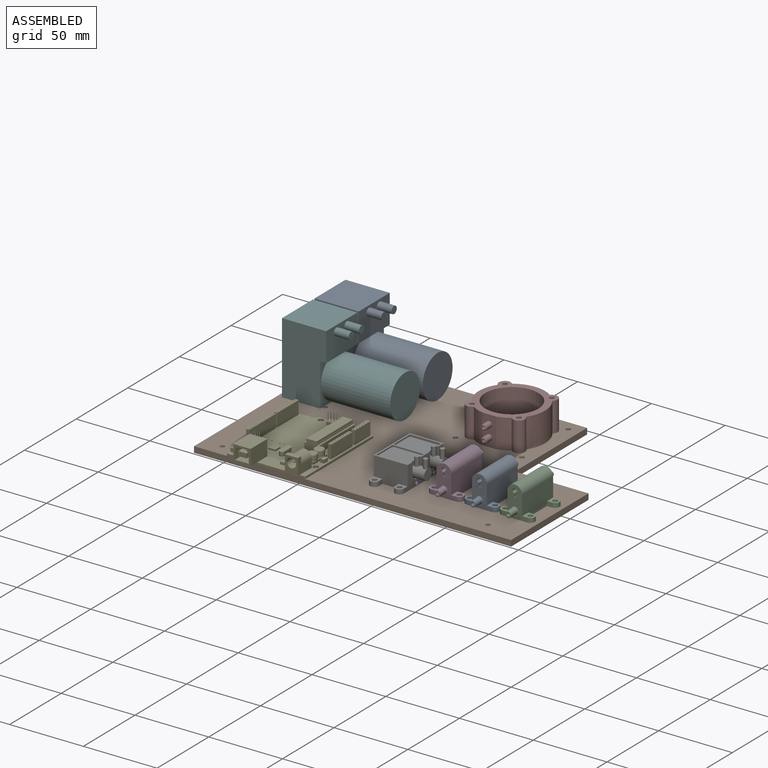
[diagram: assembled view]
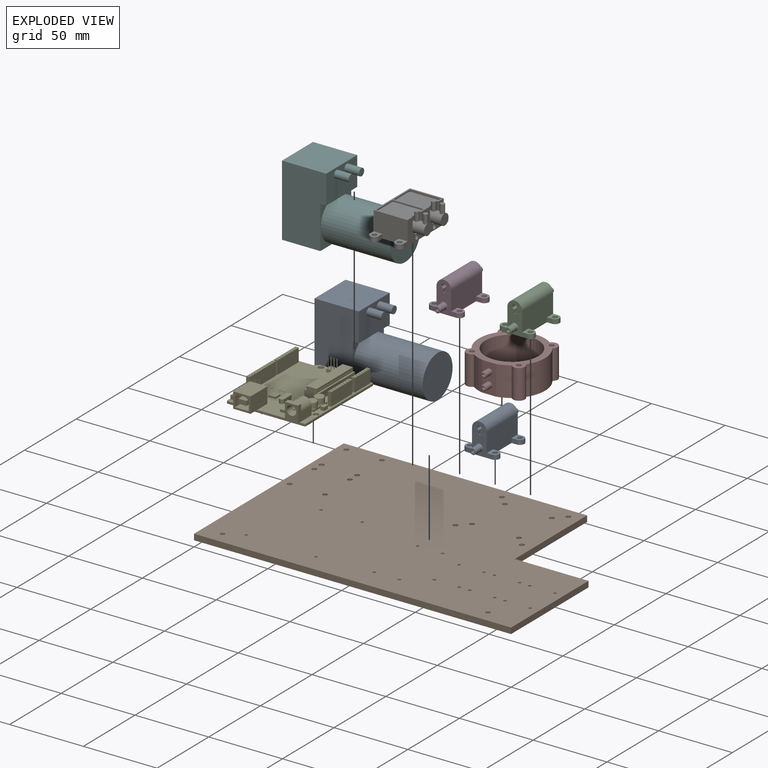
[diagram: exploded view]
GUIDED TOUR — MATED ASSEMBLY WITH SUBASSEMBLIES (Onshape document 6fe36d6163adcaab7d291b34, AutoMate assembly 6fe36d6163adcaab7d291b34_4f25ac5a46c20a3193c2e5eb_db5151b2138fbb8e81cf2395_default)

This assembly has 11 component occurrences arranged in 9 top-level units: 8 individual components plus 1 subassembly (S0). The tour has two levels: first the top level, where each subassembly is treated as one rigid unit; then each subassembly is toured internally in its own section (nesting deeper than one subassembly level is flattened into its subassembly's section).

Components are labeled P0..P10 across the whole record; subassembly units are labeled S0..S0. A mate is a constraint between two units; its type names the relative motion it leaves free:
  PARALLEL — keeps the two listed directions parallel,
  PLANAR — leaves sliding in the plane through the listed point (normal = the listed direction) and rotation about that normal free.
Axis/direction vectors are unit vectors and 'through' points are millimeter coordinates, both in the assembly's world frame.

TOP-LEVEL MATES (between units; each subassembly's internal mates are listed in its own section)
  1. PARALLEL "Parallel 1": P4 <-> P1, direction (0.000, -1.000, 0.000) through (52.75, -0.01, 5.52) mm
  2. PLANAR "Planar 5": P2 <-> P1, direction (0.000, 0.000, -1.000) through (200.60, 39.06, 4.00) mm
  3. PLANAR "Planar 7": P5 <-> P1, direction (0.000, 0.000, -1.000) through (16.11, 95.74, 4.00) mm
  4. PLANAR "Planar 8": S0 <-> P1, direction (0.000, 0.000, -1.000) through (119.59, 37.08, 4.00) mm
  5. PLANAR "Planar 4": P1 <-> P0, direction (0.000, 0.000, 1.000) through (97.06, 67.64, 4.00) mm
  6. PLANAR "Planar 6": P9 <-> P1, direction (0.000, 0.000, -1.000) through (16.05, 127.32, 4.00) mm
  7. PLANAR "Planar 3": P3 <-> P1, direction (0.000, 0.000, -1.000) through (152.57, 39.01, 4.00) mm
  8. PLANAR "Planar 2": P7 <-> P1, direction (0.000, 0.000, -1.000) through (134.97, 115.06, 4.00) mm
  9. PLANAR "Planar 1": P1 <-> P4, direction (0.000, 0.000, 1.000) through (97.06, 67.64, 4.00) mm

TOP-LEVEL ASSEMBLY ORDER
  1. P9 — the base component [order verified]
  2. P5 [order verified]
  3. P7 [order verified]
  4. S0 [order verified]
  5. P3 [order verified]
  6. P4 [order verified]
  7. P0 [order verified]
  8. P2 [order verified]
  9. P1 [order verified]
Order-tag legend:
  [order verified] — this step's position reverses a verified removal order: the component was checked to insert without passing through the ones already placed.

Of the 11 component occurrences, 5 carry the full construction recipe — the FeatureScript program that regenerates the part's solid from scratch; the rest are supplied as boundary geometry only. Each toured unit is shown spotlighted twice — assembled, then exploded with a leader line back to its socket (green = recipe-attached component, orange = geometry-only, blue = subassembly unit; the rest desaturated gray).
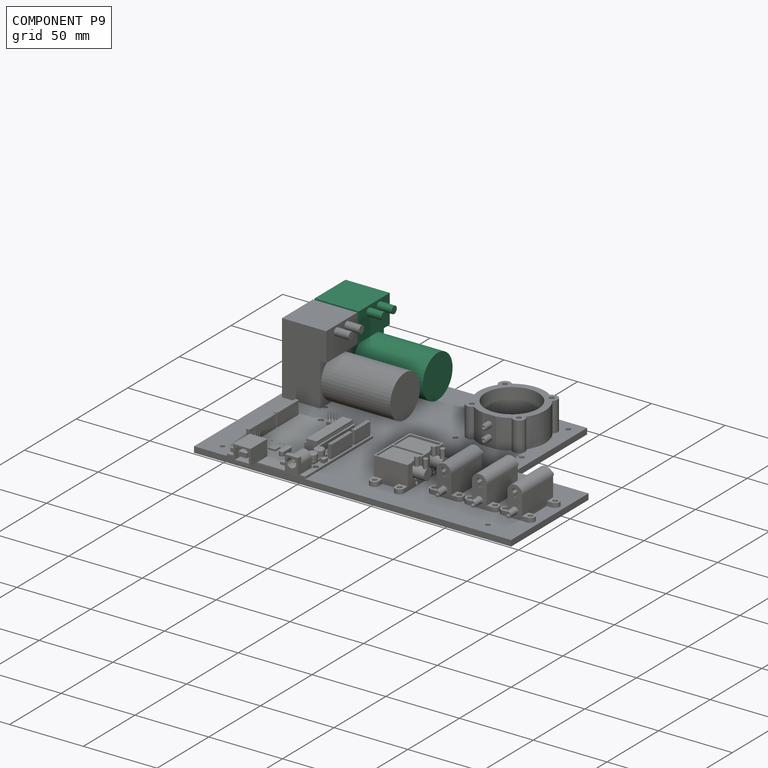
[diagram: component P9 — assembled]
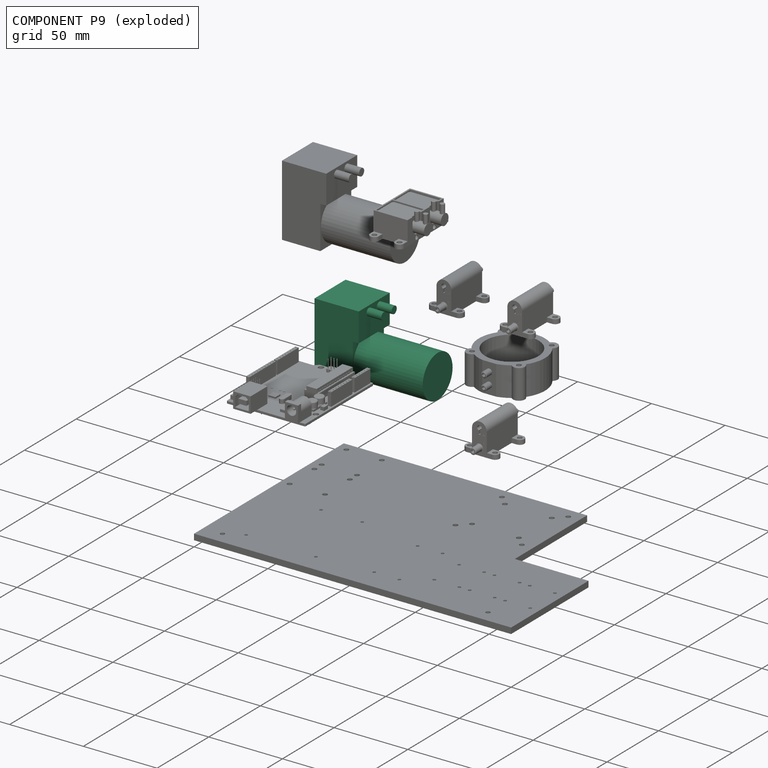
[diagram: component P9 — exploded]
COMPONENT P9 — same part as P5 (CADFS 00896236); its construction recipe is shown at P5.
Held by: PLANAR mate "Planar 6" to P1.
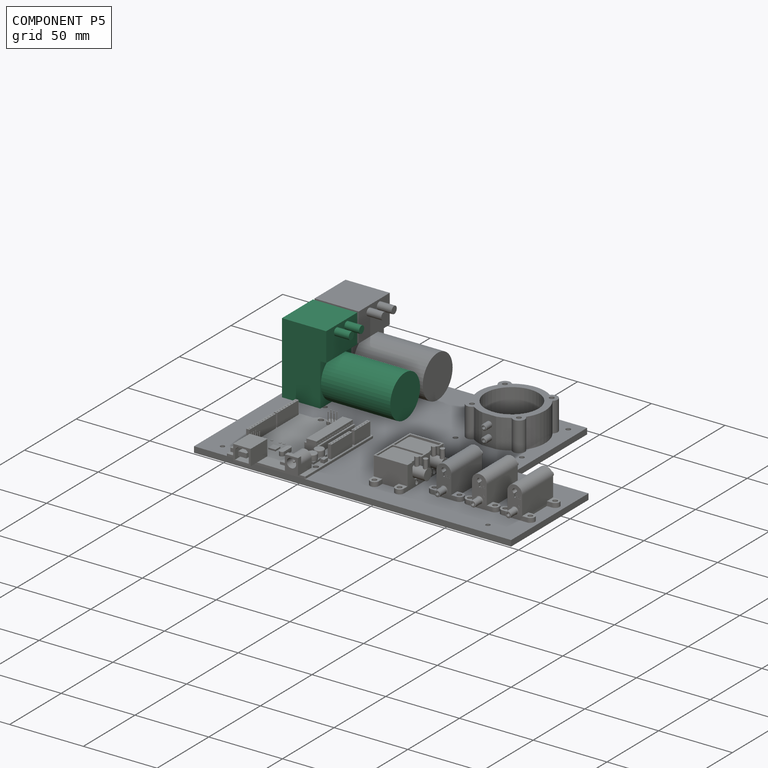
[diagram: component P5 — assembled]
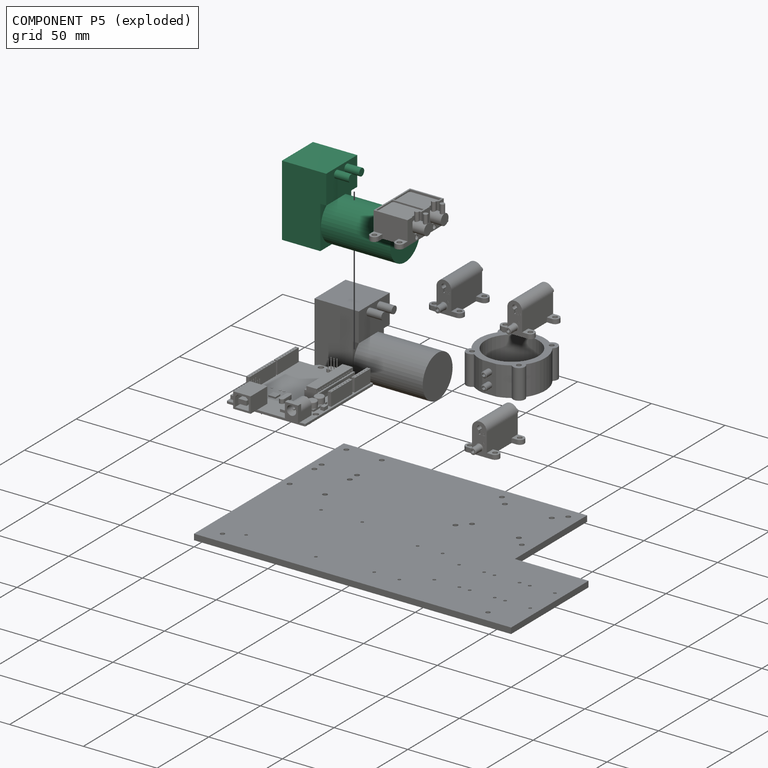
[diagram: component P5 — exploded]
COMPONENT P5 — recipe-attached (CADFS 00896236, mesh-verified: the recipe's output STEP matches this component's geometry to below the mesh-comparison resolution (tessellation chordal tolerance ~0.139 mm)).
Held by: PLANAR mate "Planar 7" to P1.
Construction recipe (FeatureScript — the CAD program that rebuilds this solid; sketch coordinates are in the units given by the * unit suffixes, e.g. mm):

FeatureScript 1511;
import(path : "onshape/std/geometry.fs", version : "1511.0");
import(path : "onshape/std/common.fs", version : "1511.0");
const mm = millimeter;
const VERTEX = EntityType.VERTEX;
const EDGE = EntityType.EDGE;
const FACE = EntityType.FACE;
const BODY = EntityType.BODY;
function v(x, y){return vector(x, y);}
function OD(order){return orderDisambiguation(order);}
function OSD(set){return originalSetDisambiguation(set);}
function TD(topology){return topologyDisambiguation(topology);}
function TDD(query){return trueDependencyDisambiguation(query);}
function sQuery(a, b, c) {return sketchEntityQuery(a, b, c);}

annotation { "Feature Type Name" : "Feature", "Feature Type Description" : "" }
export const myFeature = defineFeature(function(context is Context, id is Id, definition is map)
    precondition{}
    {
        {
            var Q0;
            Q0=qCreatedBy(makeId("Top.planeOp"),FACE);
            var sketch = newSketch(context, id + "F0", { "sketchPlane" : qUnion([Q0])});
            skLineSegment(sketch, "E0.bottom", {"start": v(-15, 15) * mm, "end": v(15, 15) * mm});
            skLineSegment(sketch, "E0.top", {"start": v(-15, -15) * mm, "end": v(15, -15) * mm});
            skLineSegment(sketch, "E0.left", {"start": v(-15, 15) * mm, "end": v(-15, -15) * mm});
            skLineSegment(sketch, "E0.right", {"start": v(15, 15) * mm, "end": v(15, -15) * mm});
            skSolve(sketch);
        }
        {
            var Q0;
            Q0 = qSketchRegion(id + "F0", true);
            extrude(context, id + "F1", {"entities" : qUnion([Q0]), "depth" : 48.5 * mm, "offsetDistance" : 25 * mm});
        }
        {
            var Q0;
            Q0=makeQuery(id+"F1.opExtrude","CAP_FACE",FACE,{"disambiguationData":[OSD([sQuery(id+"F0.wireOp",EDGE,"E0.bottom"),sQuery(id+"F0.wireOp",EDGE,"E0.top"),sQuery(id+"F0.wireOp",EDGE,"E0.left"),sQuery(id+"F0.wireOp",EDGE,"E0.right")])],"isStart":true});
            var sketch = newSketch(context, id + "F2", { "sketchPlane" : qUnion([Q0])});
            skLineSegment(sketch, "E1.bottom", {"start": v(-15, 15) * mm, "end": v(-11, 15) * mm});
            skLineSegment(sketch, "E1.top", {"start": v(-15, -15) * mm, "end": v(-11, -15) * mm});
            skLineSegment(sketch, "E1.left", {"start": v(-15, 15) * mm, "end": v(-15, -15) * mm});
            skLineSegment(sketch, "E1.right", {"start": v(-11, 15) * mm, "end": v(-11, -15) * mm});
            skSolve(sketch);
        }
        {
            var Q0;
            Q0 = qSketchRegion(id + "F2", true);
            extrude(context, id + "F3", {"entities" : qUnion([Q0]), "operationType" : NewBodyOperationType.REMOVE, "oppositeDirection" : true, "depth" : 29 * mm, "offsetDistance" : 25 * mm});
        }
        {
            var Q0;
            Q0=makeQuery(id+"F3.boolean.opBoolean","COPY",FACE,{"derivedFrom":makeQuery(id+"F3.opExtrude","SWEPT_FACE",FACE,{"disambiguationData":[OSD([sQuery(id+"F2.wireOp",EDGE,"E1.right")])]})});
            var sketch = newSketch(context, id + "F4", { "sketchPlane" : qUnion([Q0])});
            skCircle(sketch, "E2", {"center": v(0, 14.5) * mm, "radius": 14.45 * mm});
            skSolve(sketch);
        }
        {
            var Q0;
            Q0 = qSketchRegion(id + "F4", true);
            extrude(context, id + "F5", {"entities" : qUnion([Q0]), "operationType" : NewBodyOperationType.ADD, "depth" : 47 * mm, "offsetDistance" : 25 * mm});
        }
        {
            var Q0;
            Q0=makeQuery(id+"F1.opExtrude","SWEPT_FACE",FACE,{"disambiguationData":[OSD([sQuery(id+"F0.wireOp",EDGE,"E0.left")])]});
            var sketch = newSketch(context, id + "F6", { "sketchPlane" : qUnion([Q0])});
            skLineSegment(sketch, "E3", {"start": v(-16.76, 44.5) * mm, "end": v(23.27, 44.5) * mm, "construction": true});
            skCircle(sketch, "E4", {"center": v(5, 44.5) * mm, "radius": 2.5 * mm});
            skCircle(sketch, "E5", {"center": v(-5, 44.5) * mm, "radius": 2.5 * mm});
            skSolve(sketch);
        }
        {
            var Q0;
            Q0 = qSketchRegion(id + "F6", true);
            extrude(context, id + "F7", {"entities" : qUnion([Q0]), "operationType" : NewBodyOperationType.ADD, "depth" : 10 * mm, "offsetDistance" : 25 * mm});
        }
    });
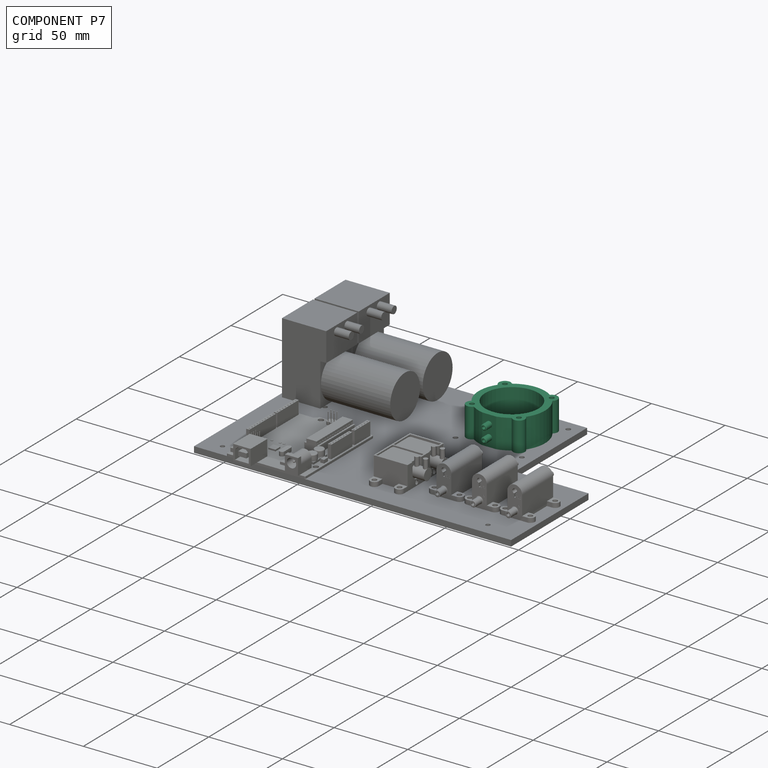
[diagram: component P7 — assembled]
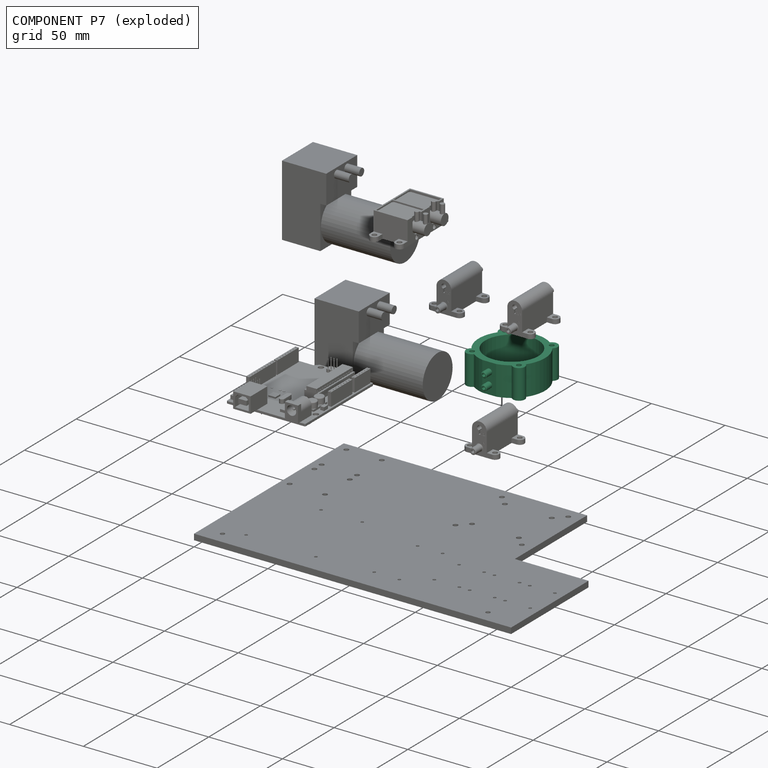
[diagram: component P7 — exploded]
COMPONENT P7 — recipe-attached (CADFS 00867752, mesh-verified: the recipe's output STEP matches this component's geometry to below the mesh-comparison resolution (tessellation chordal tolerance ~0.105 mm)).
Held by: PLANAR mate "Planar 2" to P1.
Construction recipe (FeatureScript — the CAD program that rebuilds this solid; sketch coordinates are in the units given by the * unit suffixes, e.g. mm):

FeatureScript 1511;
import(path : "onshape/std/geometry.fs", version : "1511.0");
import(path : "onshape/std/common.fs", version : "1511.0");
const mm = millimeter;
const VERTEX = EntityType.VERTEX;
const EDGE = EntityType.EDGE;
const FACE = EntityType.FACE;
const BODY = EntityType.BODY;
function v(x, y){return vector(x, y);}
function OD(order){return orderDisambiguation(order);}
function OSD(set){return originalSetDisambiguation(set);}
function TD(topology){return topologyDisambiguation(topology);}
function TDD(query){return trueDependencyDisambiguation(query);}
function sQuery(a, b, c) {return sketchEntityQuery(a, b, c);}

annotation { "Feature Type Name" : "Feature", "Feature Type Description" : "" }
export const myFeature = defineFeature(function(context is Context, id is Id, definition is map)
    precondition{}
    {
        {
            var Q0;
            Q0=qCreatedBy(makeId("Top.planeOp"),FACE);
            var sketch = newSketch(context, id + "F0", { "sketchPlane" : qUnion([Q0])});
            skArc(sketch, "E0", {"start": v(12.84, 18.48) * mm, "mid": v(0, 22.5) * mm, "end": v(-12.84, 18.48) * mm});
            skLineSegment(sketch, "E1", {"start": v(0, 0) * mm, "end": v(-27.58, 27.58) * mm, "construction": true});
            skLineSegment(sketch, "E2", {"start": v(0, 0) * mm, "end": v(35.21, 35.21) * mm, "construction": true});
            skLineSegment(sketch, "E3", {"start": v(0, 0) * mm, "end": v(26.29, -26.29) * mm, "construction": true});
            skLineSegment(sketch, "E4", {"start": v(0, 0) * mm, "end": v(-25.6, -25.6) * mm, "construction": true});
            skArc(sketch, "E5", {"start": v(-12.84, 18.48) * mm, "mid": v(-18.74, 18.74) * mm, "end": v(-18.48, 12.84) * mm});
            skArc(sketch, "E6", {"start": v(18.48, 12.84) * mm, "mid": v(18.74, 18.74) * mm, "end": v(12.84, 18.48) * mm});
            skArc(sketch, "E7", {"start": v(12.84, -18.48) * mm, "mid": v(18.74, -18.74) * mm, "end": v(18.48, -12.84) * mm});
            skArc(sketch, "E8", {"start": v(-18.48, -12.84) * mm, "mid": v(-18.74, -18.74) * mm, "end": v(-12.84, -18.48) * mm});
            skArc(sketch, "E9.trimOffspring", {"start": v(-18.48, 12.84) * mm, "mid": v(-22.5, 0) * mm, "end": v(-18.48, -12.84) * mm});
            skArc(sketch, "E10.trimOffspring", {"start": v(-12.84, -18.48) * mm, "mid": v(-8.95, -20.64) * mm, "end": v(-4.72, -22) * mm});
            skArc(sketch, "E11.trimOffspring", {"start": v(18.48, -12.84) * mm, "mid": v(22.5, 0) * mm, "end": v(18.48, 12.84) * mm});
            skCircle(sketch, "E12", {"center": v(0, 0) * mm, "radius": 18.63 * mm, "construction": true});
            skLineSegment(sketch, "E13", {"start": v(-4.72, -22) * mm, "end": v(4.72, -22) * mm});
            skArc(sketch, "E14.trimOffspring", {"start": v(4.72, -22) * mm, "mid": v(8.95, -20.64) * mm, "end": v(12.84, -18.48) * mm});
            skSolve(sketch);
        }
        {
            var Q0;
            Q0 = qSketchRegion(id + "F0", true);
            extrude(context, id + "F1", {"entities" : qUnion([Q0]), "depth" : 20 * mm, "offsetDistance" : 25 * mm});
        }
        {
            var Q0;
            Q0=makeQuery(id+"F1.opExtrude","CAP_FACE",FACE,{"disambiguationData":[OSD([sQuery(id+"F0.wireOp",EDGE,"E0"),sQuery(id+"F0.wireOp",EDGE,"E5"),sQuery(id+"F0.wireOp",EDGE,"E6"),sQuery(id+"F0.wireOp",EDGE,"E7"),sQuery(id+"F0.wireOp",EDGE,"E8"),sQuery(id+"F0.wireOp",EDGE,"E9.trimOffspring"),sQuery(id+"F0.wireOp",EDGE,"E10.trimOffspring"),sQuery(id+"F0.wireOp",EDGE,"E11.trimOffspring"),sQuery(id+"F0.wireOp",EDGE,"E13"),sQuery(id+"F0.wireOp",EDGE,"E14.trimOffspring")])],"isStart":false});
            var sketch = newSketch(context, id + "F2", { "sketchPlane" : qUnion([Q0])});
            skCircle(sketch, "E15", {"center": v(-15.9, 15.9) * mm, "radius": 1.6 * mm});
            skCircle(sketch, "E16", {"center": v(15.9, 15.9) * mm, "radius": 1.6 * mm});
            skCircle(sketch, "E17", {"center": v(15.9, -15.9) * mm, "radius": 1.6 * mm});
            skCircle(sketch, "E18", {"center": v(-15.9, -15.9) * mm, "radius": 1.6 * mm});
            skSolve(sketch);
        }
        {
            var Q0;
            Q0 = qSketchRegion(id + "F2", true);
            extrude(context, id + "F3", {"entities" : qUnion([Q0]), "operationType" : NewBodyOperationType.REMOVE, "endBound" : BoundingType.THROUGH_ALL, "oppositeDirection" : true, "depth" : 25 * mm, "offsetDistance" : 25 * mm});
        }
        {
            var Q0;
            Q0=makeQuery(id+"F1.opExtrude","CAP_FACE",FACE,{"disambiguationData":[OSD([sQuery(id+"F0.wireOp",EDGE,"E0"),sQuery(id+"F0.wireOp",EDGE,"E5"),sQuery(id+"F0.wireOp",EDGE,"E6"),sQuery(id+"F0.wireOp",EDGE,"E7"),sQuery(id+"F0.wireOp",EDGE,"E8"),sQuery(id+"F0.wireOp",EDGE,"E9.trimOffspring"),sQuery(id+"F0.wireOp",EDGE,"E10.trimOffspring"),sQuery(id+"F0.wireOp",EDGE,"E11.trimOffspring"),sQuery(id+"F0.wireOp",EDGE,"E13"),sQuery(id+"F0.wireOp",EDGE,"E14.trimOffspring")])],"isStart":false});
            var sketch = newSketch(context, id + "F4", { "sketchPlane" : qUnion([Q0])});
            skCircle(sketch, "E19", {"center": v(0, 0) * mm, "radius": 18 * mm});
            skSolve(sketch);
        }
        {
            var Q0;
            Q0 = qSketchRegion(id + "F4", true);
            extrude(context, id + "F5", {"entities" : qUnion([Q0]), "operationType" : NewBodyOperationType.REMOVE, "oppositeDirection" : true, "depth" : 18 * mm, "offsetDistance" : 25 * mm});
        }
        {
            var Q0;
            Q0=makeQuery(id+"F1.opExtrude","SWEPT_FACE",FACE,{"disambiguationData":[OSD([sQuery(id+"F0.wireOp",EDGE,"E13")])]});
            var sketch = newSketch(context, id + "F6", { "sketchPlane" : qUnion([Q0])});
            skCircle(sketch, "E20", {"center": v(0, 14) * mm, "radius": 2 * mm});
            skCircle(sketch, "E21", {"center": v(0, 6) * mm, "radius": 2 * mm});
            skSolve(sketch);
        }
        {
            var Q0;
            Q0 = qSketchRegion(id + "F6", true);
            extrude(context, id + "F7", {"entities" : qUnion([Q0]), "operationType" : NewBodyOperationType.ADD, "depth" : 5.5 * mm, "offsetDistance" : 25 * mm});
        }
        {
            var Q0;
            Q0=makeQuery(id+"F7.opExtrude","CAP_FACE",FACE,{"disambiguationData":[OSD([sQuery(id+"F6.wireOp",EDGE,"E20")])],"isStart":false});
            var sketch = newSketch(context, id + "F8", { "sketchPlane" : qUnion([Q0])});
            skSolve(sketch);
        }
        {
            var Q0;
            Q0=makeQuery(id+"F7.opExtrude","CAP_FACE",FACE,{"disambiguationData":[OSD([sQuery(id+"F6.wireOp",EDGE,"E21")])],"isStart":false});
            var sketch = newSketch(context, id + "F9", { "sketchPlane" : qUnion([Q0])});
            skCircle(sketch, "E22", {"center": v(0, 6) * mm, "radius": 1 * mm});
            skSolve(sketch);
        }
        {
            var Q0;
            Q0 = qSketchRegion(id + "F9", true);
            extrude(context, id + "F10", {"entities" : qUnion([Q0]), "operationType" : NewBodyOperationType.REMOVE, "oppositeDirection" : true, "depth" : 25 * mm, "offsetDistance" : 25 * mm});
        }
        {
            var Q0;
            Q0=makeQuery(id+"F8.imprint","IMPRINT",FACE,{"disambiguationData":[TD([[makeQuery(id+"F8.imprint","IMPRINT",EDGE,{"derivedFrom":makeQuery(id+"F7.opExtrude","CAP_EDGE",EDGE,{"disambiguationData":[OSD([sQuery(id+"F6.wireOp",EDGE,"E20")])],"isStart":false})}),1.0]])]});
            var sketch = newSketch(context, id + "F11", { "sketchPlane" : qUnion([Q0])});
            skCircle(sketch, "E23", {"center": v(0, 14) * mm, "radius": 1 * mm});
            skSolve(sketch);
        }
        {
            var Q0;
            Q0 = qSketchRegion(id + "F11", true);
            extrude(context, id + "F12", {"entities" : qUnion([Q0]), "operationType" : NewBodyOperationType.REMOVE, "oppositeDirection" : true, "depth" : 25 * mm, "offsetDistance" : 25 * mm});
        }
        {
            var Q0;
            Q0=makeQuery(id+"F7.opExtrude","CAP_EDGE",EDGE,{"disambiguationData":[OSD([sQuery(id+"F6.wireOp",EDGE,"E20")])],"isStart":false});
            var Q1;
            Q1=makeQuery(id+"F7.opExtrude","CAP_EDGE",EDGE,{"disambiguationData":[OSD([sQuery(id+"F6.wireOp",EDGE,"E21")])],"isStart":false});
            chamfer(context, id + "F13", {"entities" : qUnion([Q0, Q1]), "width" : 0.5 * mm, "tangentPropagation" : true});
        }
    });
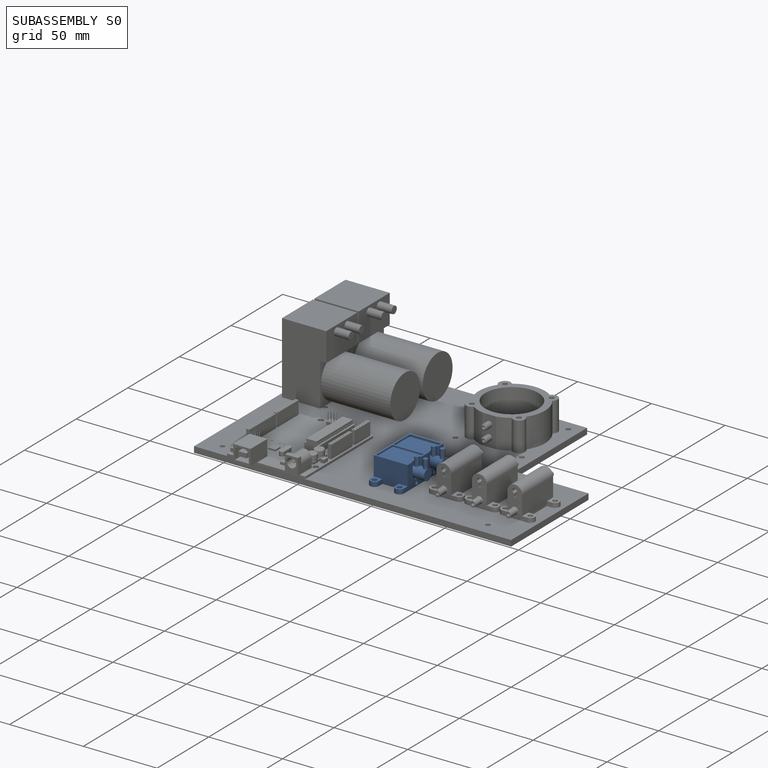
[diagram: subassembly S0 — assembled]
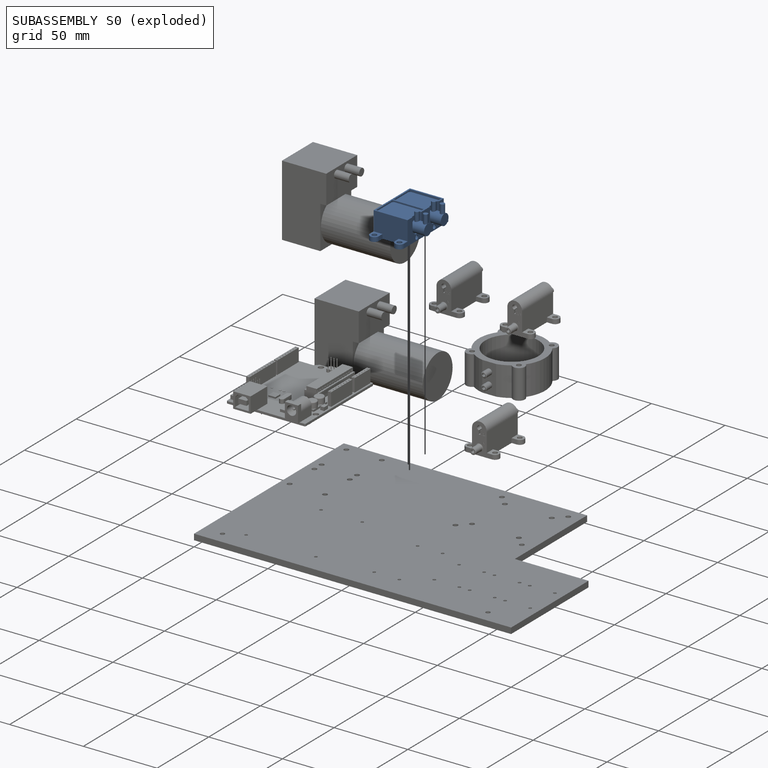
[diagram: subassembly S0 — exploded]
SUBASSEMBLY S0 — 3 components (P6, P8, P10), of which 2 recipe-attached; toured below.
Held by: PLANAR mate "Planar 8" to P1.
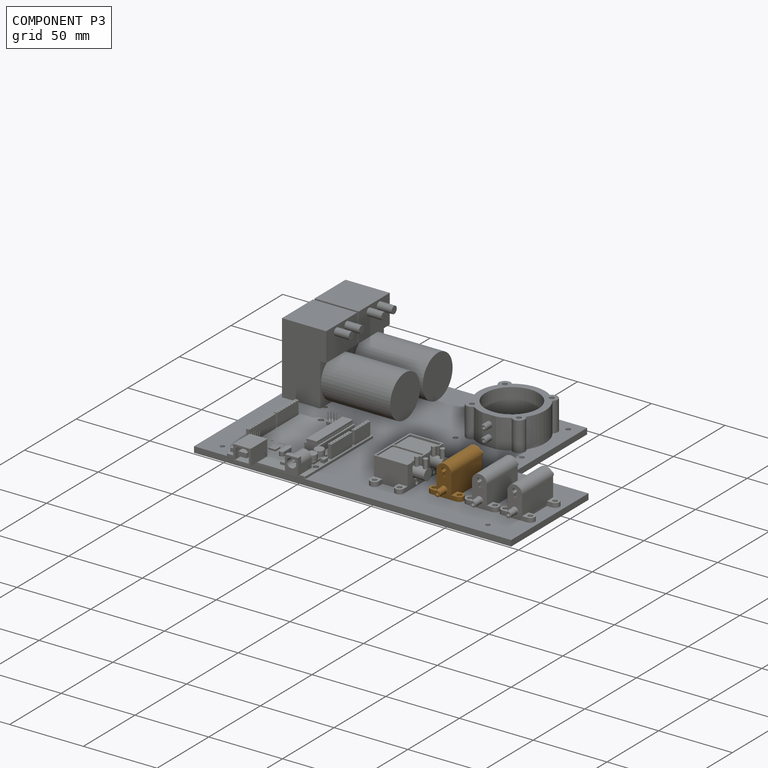
[diagram: component P3 — assembled]
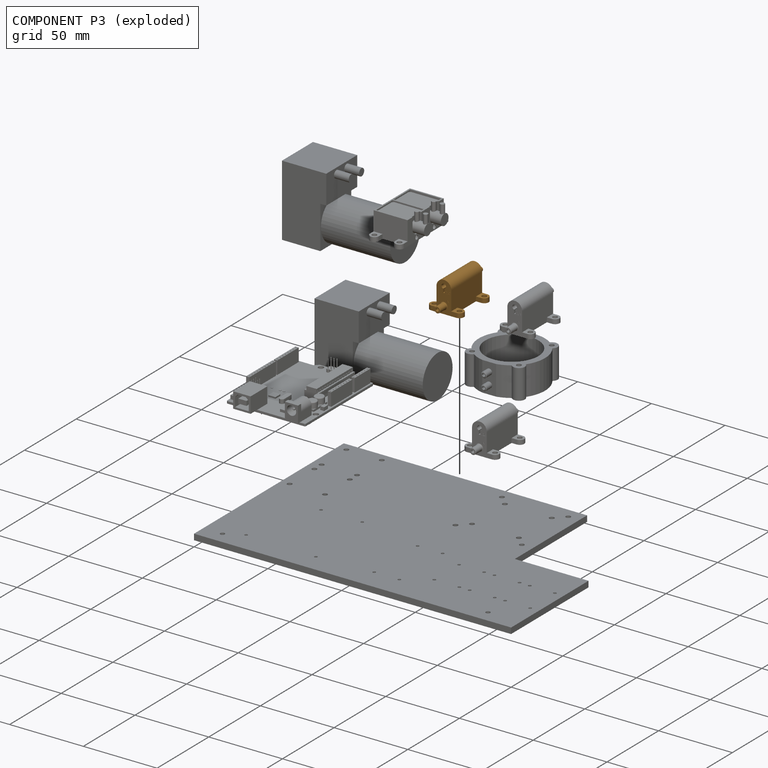
[diagram: component P3 — exploded]
COMPONENT P3 — geometry summary (no construction recipe available for this part):
  bounding box: 42.5 x 23.0 x 21.0 mm
  B-rep topology: 1 solid, 170 faces, 902 edges
  volume: 6092 mm^3 (30% of its bounding box)
  symmetry: mirror-symmetric across its x mid-plane
Held by: PLANAR mate "Planar 3" to P1.
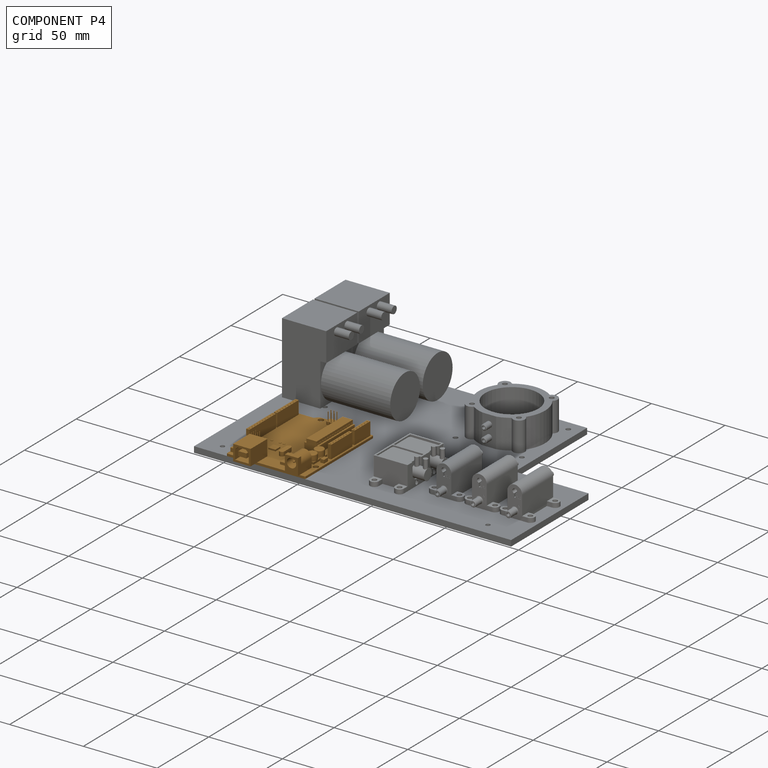
[diagram: component P4 — assembled]
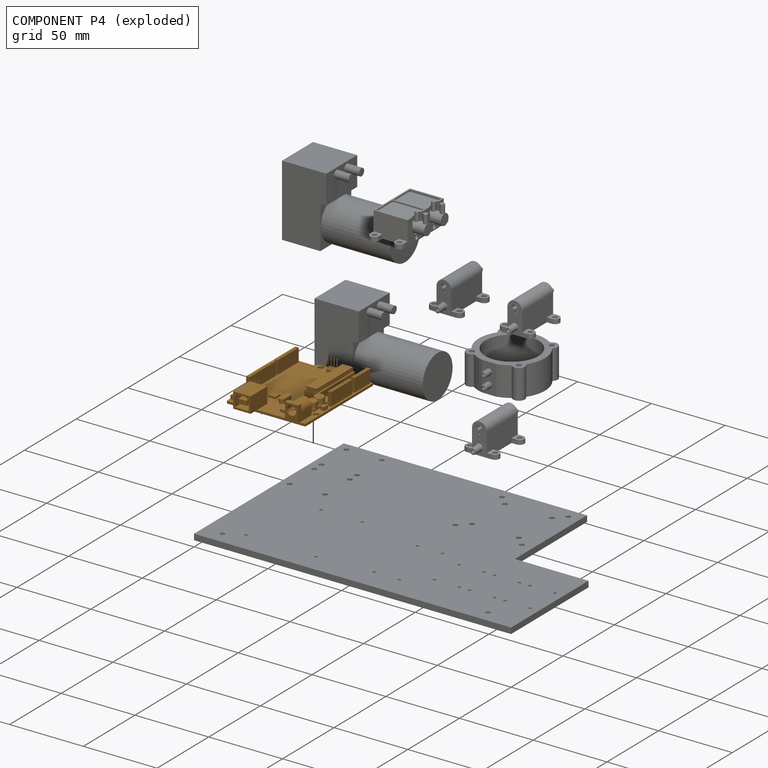
[diagram: component P4 — exploded]
COMPONENT P4 — geometry summary (no construction recipe available for this part):
  bounding box: 74.9 x 53.3 x 15.1 mm
  B-rep topology: 1 solid, 840 faces, 3935 edges
  volume: 12325 mm^3 (20% of its bounding box)
Held by: PARALLEL mate "Parallel 1" to P1; PLANAR mate "Planar 1" to P1.
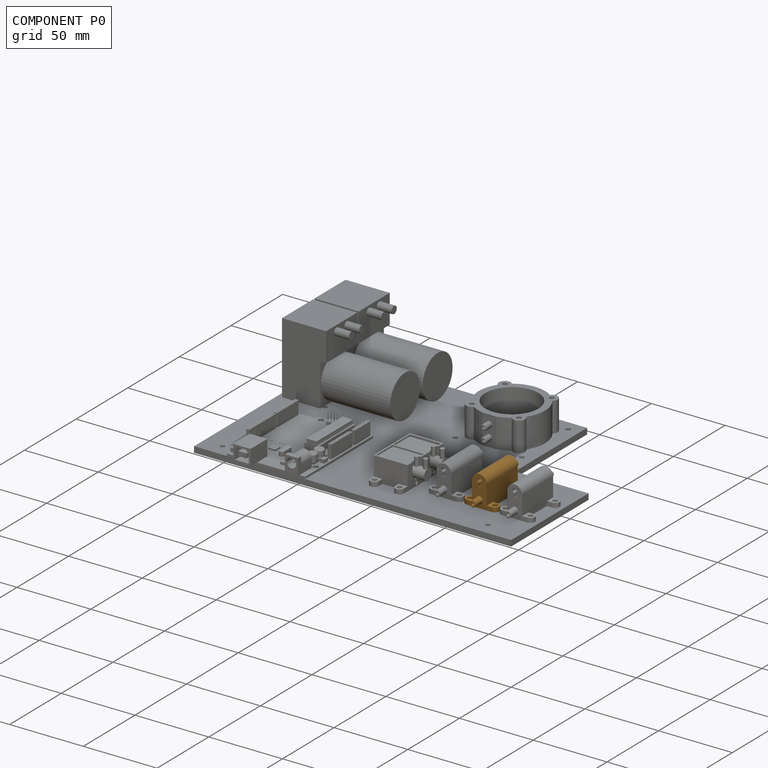
[diagram: component P0 — assembled]
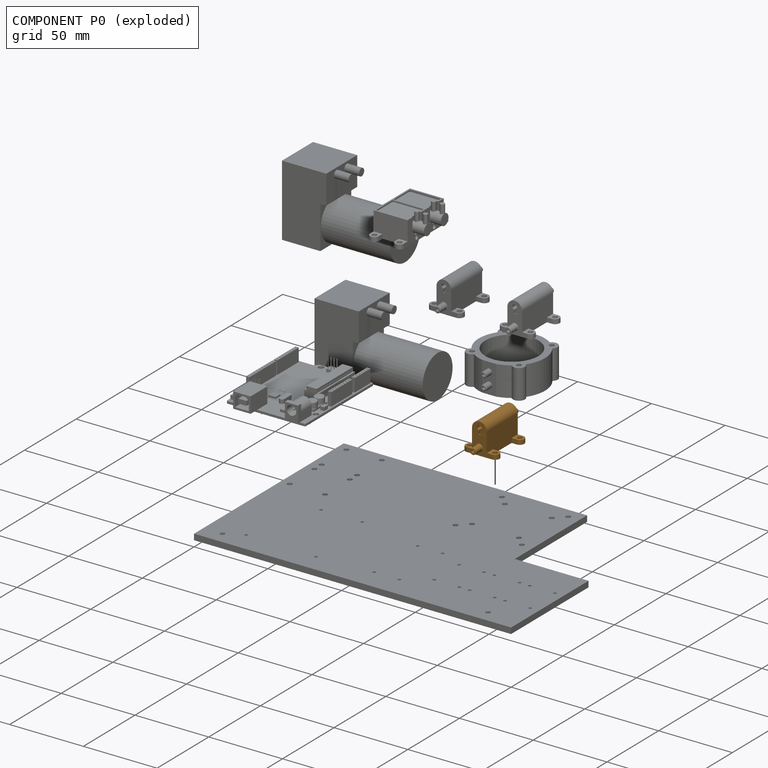
[diagram: component P0 — exploded]
COMPONENT P0 — geometry summary (no construction recipe available for this part):
  bounding box: 42.5 x 23.0 x 21.0 mm
  B-rep topology: 1 solid, 170 faces, 902 edges
  volume: 6092 mm^3 (30% of its bounding box)
  symmetry: mirror-symmetric across its x mid-plane
Held by: PLANAR mate "Planar 4" to P1.
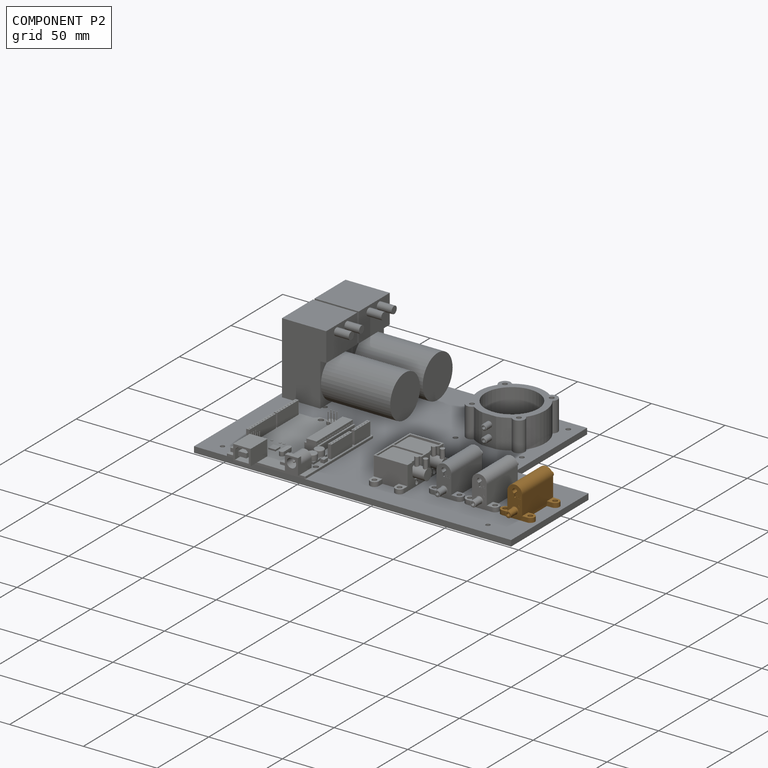
[diagram: component P2 — assembled]
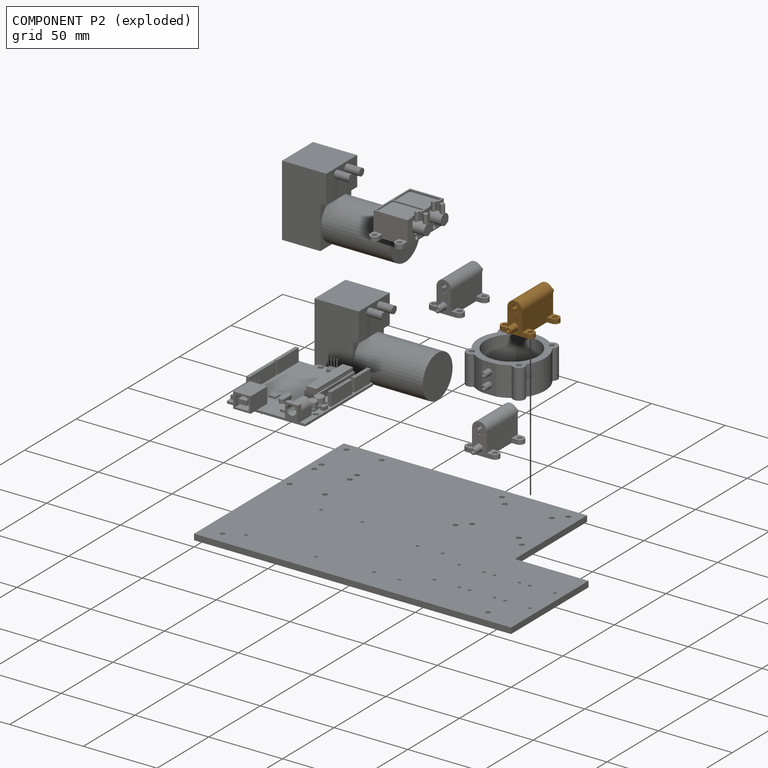
[diagram: component P2 — exploded]
COMPONENT P2 — geometry summary (no construction recipe available for this part):
  bounding box: 42.5 x 23.0 x 21.0 mm
  B-rep topology: 1 solid, 170 faces, 902 edges
  volume: 6092 mm^3 (30% of its bounding box)
  symmetry: mirror-symmetric across its x mid-plane
Held by: PLANAR mate "Planar 5" to P1.
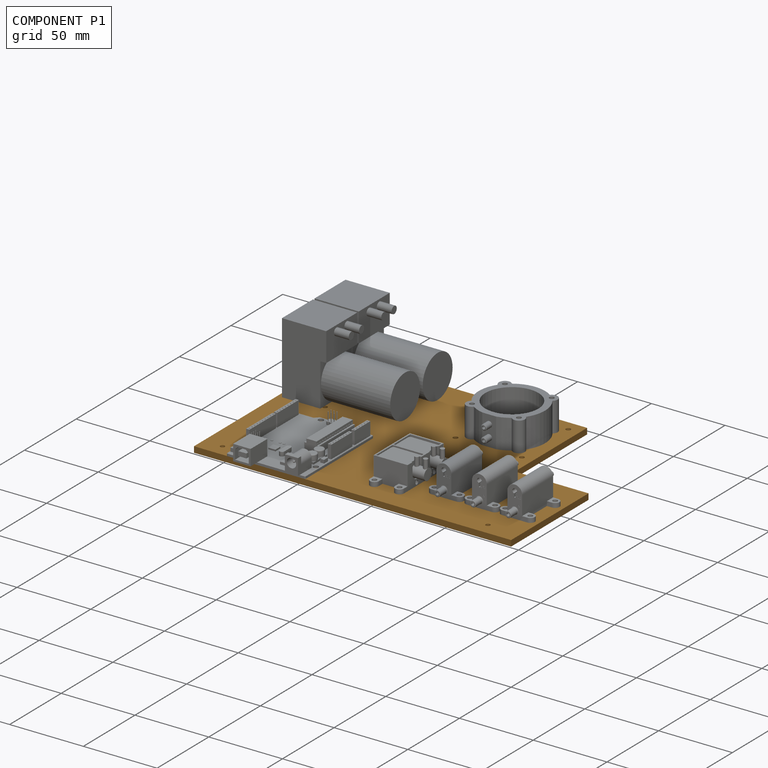
[diagram: component P1 — assembled]
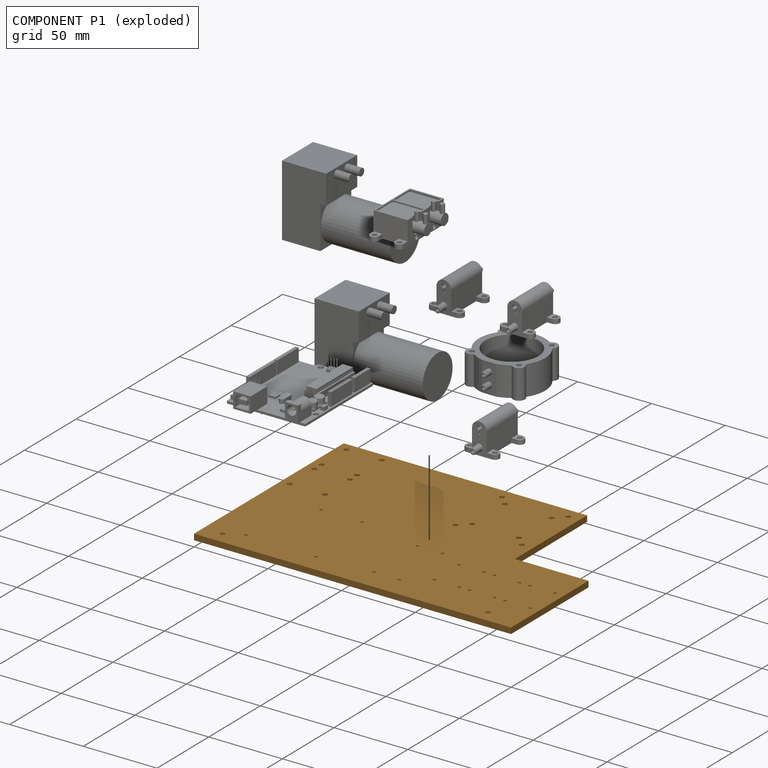
[diagram: component P1 — exploded]
COMPONENT P1 — geometry summary (no construction recipe available for this part):
  bounding box: 215.0 x 145.0 x 4.0 mm
  B-rep topology: 1 solid, 46 faces, 264 edges
  volume: 109877 mm^3 (88% of its bounding box)
  symmetry: mirror-symmetric across its z mid-plane
Held by: PARALLEL mate "Parallel 1" to P4; PLANAR mate "Planar 5" to P2; PLANAR mate "Planar 7" to P5; PLANAR mate "Planar 8" to P6; PLANAR mate "Planar 4" to P0; PLANAR mate "Planar 6" to P9; PLANAR mate "Planar 3" to P3; PLANAR mate "Planar 2" to P7; PLANAR mate "Planar 1" to P4.
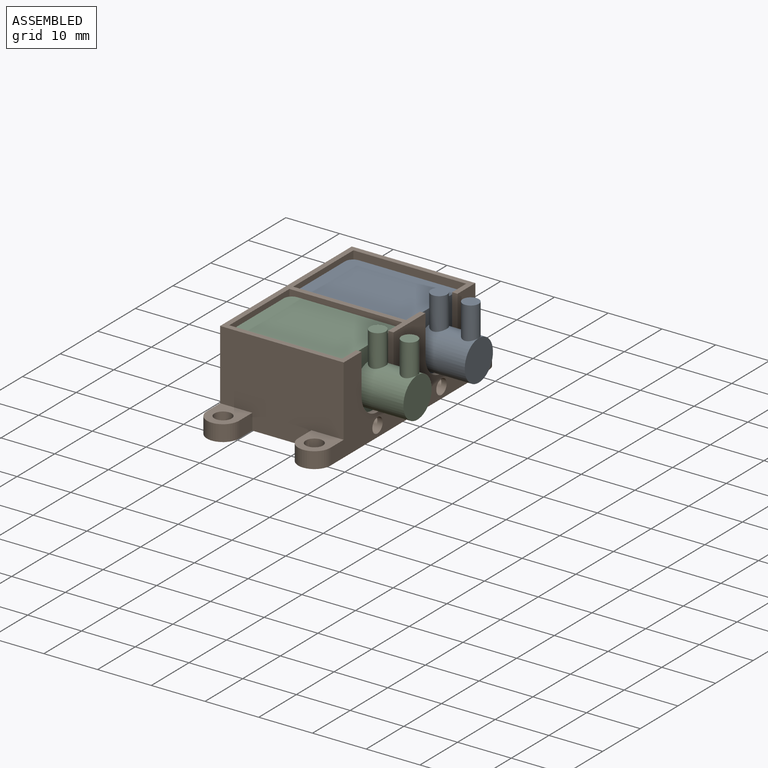
[diagram: subassembly S0 — assembled view]
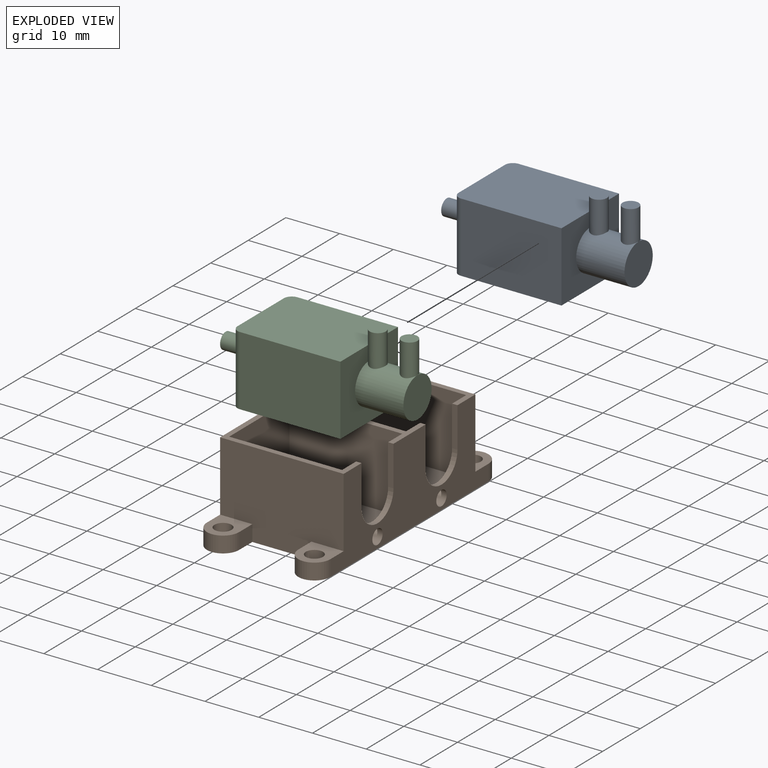
[diagram: subassembly S0 — exploded view]
SUBASSEMBLY S0 TOUR — 3 components, shown here in isolation at its own camera.

INTERNAL MATES
  1. PLANAR "Planar 4": P10 <-> P8, direction (0.000, 1.000, 0.000) through (119.94, 36.58, 12.50) mm
  2. PLANAR "Planar 3": P10 <-> P8, direction (0.000, 0.000, -1.000) through (119.22, 28.93, 6.00) mm
  3. PLANAR "Planar 2": P6 <-> P8, direction (0.000, -1.000, 0.000) through (119.94, 37.58, 12.50) mm
  4. PLANAR "Planar 1": P6 <-> P8, direction (0.000, 0.000, -1.000) through (119.22, 45.23, 6.00) mm
  5. PLANAR "Planar 6": P10 <-> P8, direction (-1.000, 0.000, 0.000) through (109.09, 28.93, 12.50) mm
  6. PLANAR "Planar 5": P6 <-> P8, direction (-1.000, 0.000, 0.000) through (109.09, 45.23, 12.50) mm

ASSEMBLY ORDER (within the subassembly)
  1. P10 — the base component [order verified]
  2. P8 [order verified]
  3. P6 [order verified]
Order-tag legend:
  [order verified] — this step's position reverses a verified removal order: the component was checked to insert without passing through the ones already placed.
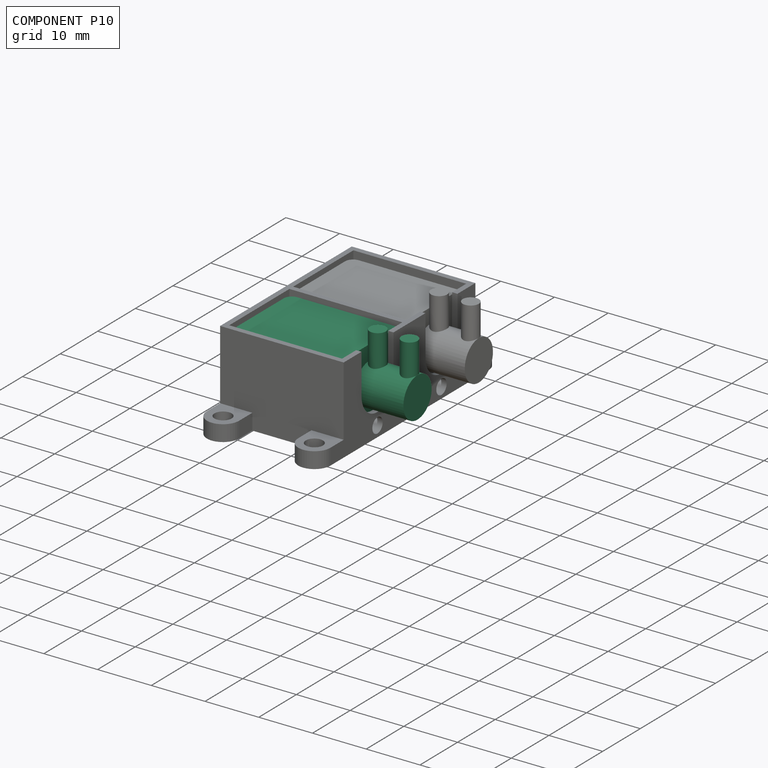
[diagram: component P10 — assembled]
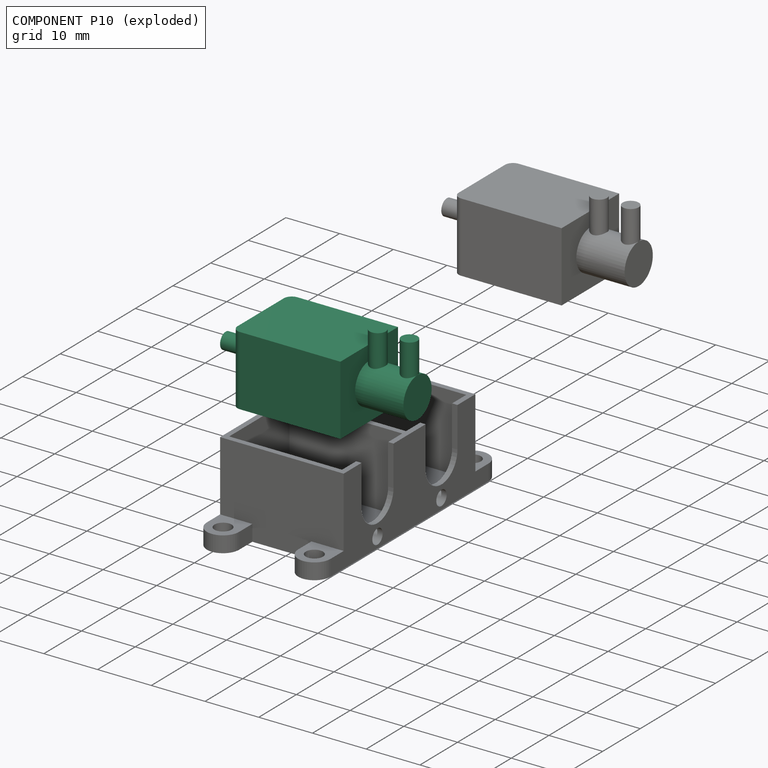
[diagram: component P10 — exploded]
COMPONENT P10 — same part as P6 (CADFS 00896327); its construction recipe is shown at P6.
Held by: PLANAR mate "Planar 4" to P8; PLANAR mate "Planar 3" to P8; PLANAR mate "Planar 6" to P8.
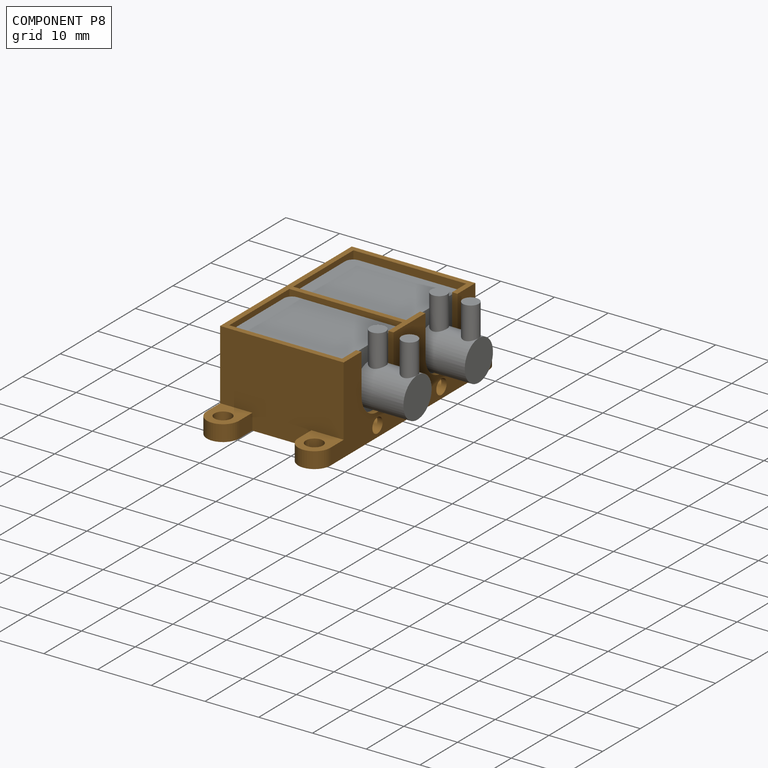
[diagram: component P8 — assembled]
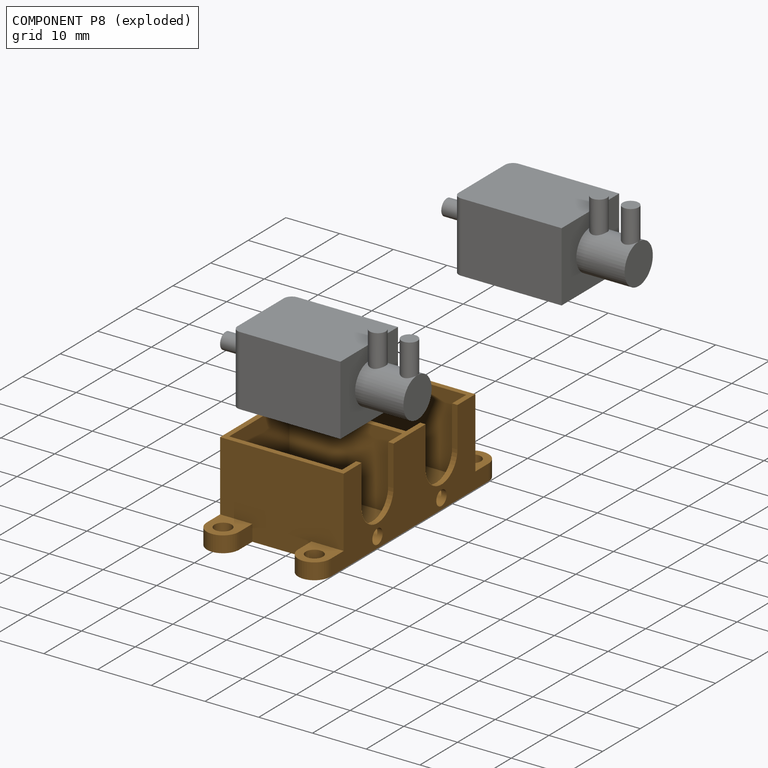
[diagram: component P8 — exploded]
COMPONENT P8 — geometry summary (no construction recipe available for this part):
  bounding box: 48.0 x 23.0 x 16.0 mm
  B-rep topology: 1 solid, 48 faces, 288 edges
  volume: 3456 mm^3 (20% of its bounding box)
  symmetry: mirror-symmetric across its x mid-plane
Held by: PLANAR mate "Planar 4" to P10; PLANAR mate "Planar 3" to P10; PLANAR mate "Planar 2" to P6; PLANAR mate "Planar 1" to P6; PLANAR mate "Planar 6" to P10; PLANAR mate "Planar 5" to P6.
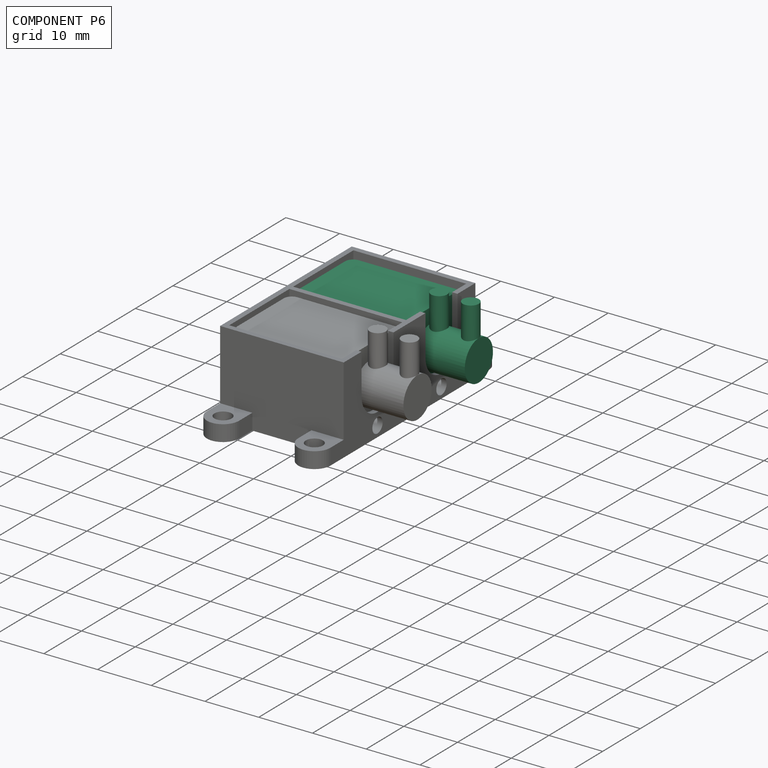
[diagram: component P6 — assembled]
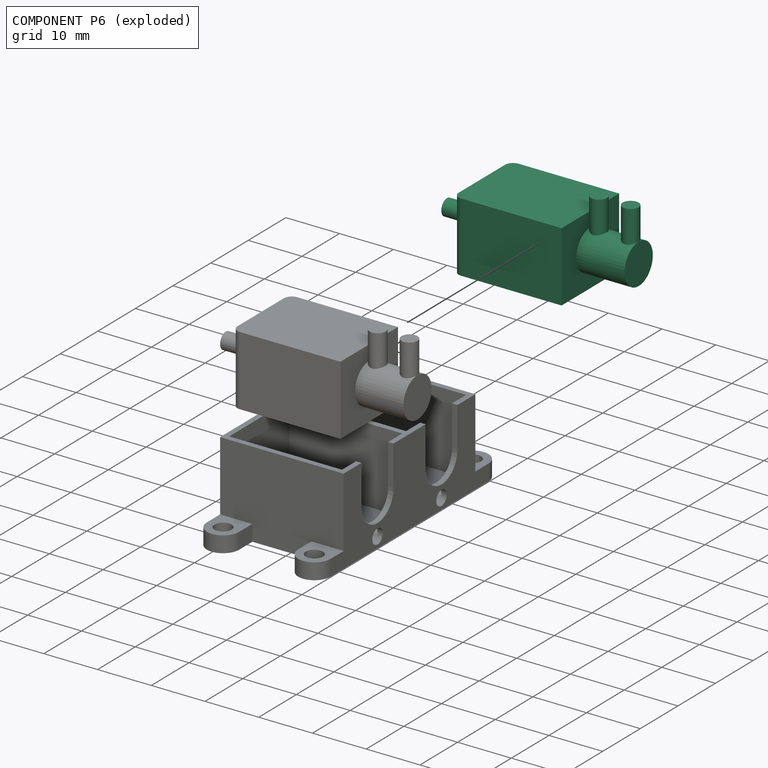
[diagram: component P6 — exploded]
COMPONENT P6 — recipe-attached (CADFS 00896327, mesh-verified: the recipe's output STEP matches this component's geometry to below the mesh-comparison resolution (tessellation chordal tolerance ~0.063 mm)).
Held by: PLANAR mate "Planar 2" to P8; PLANAR mate "Planar 1" to P8; PLANAR mate "Planar 5" to P8.
Construction recipe (FeatureScript — the CAD program that rebuilds this solid; sketch coordinates are in the units given by the * unit suffixes, e.g. mm):

FeatureScript 1511;
import(path : "onshape/std/geometry.fs", version : "1511.0");
import(path : "onshape/std/common.fs", version : "1511.0");
const mm = millimeter;
const VERTEX = EntityType.VERTEX;
const EDGE = EntityType.EDGE;
const FACE = EntityType.FACE;
const BODY = EntityType.BODY;
function v(x, y){return vector(x, y);}
function OD(order){return orderDisambiguation(order);}
function OSD(set){return originalSetDisambiguation(set);}
function TD(topology){return topologyDisambiguation(topology);}
function TDD(query){return trueDependencyDisambiguation(query);}
function sQuery(a, b, c) {return sketchEntityQuery(a, b, c);}

annotation { "Feature Type Name" : "Feature", "Feature Type Description" : "" }
export const myFeature = defineFeature(function(context is Context, id is Id, definition is map)
    precondition{}
    {
        {
            var Q0;
            Q0=qCreatedBy(makeId("Top.planeOp"),FACE);
            var sketch = newSketch(context, id + "F0", { "sketchPlane" : qUnion([Q0])});
            skLineSegment(sketch, "E0.bottom", {"start": v(-10.1, 7.65) * mm, "end": v(10.1, 7.65) * mm});
            skLineSegment(sketch, "E0.top", {"start": v(-10.1, -7.65) * mm, "end": v(10.1, -7.65) * mm});
            skLineSegment(sketch, "E0.left", {"start": v(-10.1, 7.65) * mm, "end": v(-10.1, -7.65) * mm});
            skLineSegment(sketch, "E0.right", {"start": v(10.1, 7.65) * mm, "end": v(10.1, -7.65) * mm});
            skSolve(sketch);
        }
        {
            var Q0;
            Q0 = qSketchRegion(id + "F0", true);
            extrude(context, id + "F1", {"entities" : qUnion([Q0]), "depth" : 13 * mm, "offsetDistance" : 25 * mm});
        }
        {
            var Q0;
            Q0=makeQuery(id+"F1.opExtrude","SWEPT_EDGE",EDGE,{"disambiguationData":[OSD([sQuery(id+"F0.wireOp",EDGE,"E0.top"),sQuery(id+"F0.wireOp",EDGE,"E0.right")])]});
            var Q1;
            Q1=makeQuery(id+"F1.opExtrude","SWEPT_EDGE",EDGE,{"disambiguationData":[OSD([sQuery(id+"F0.wireOp",EDGE,"E0.bottom"),sQuery(id+"F0.wireOp",EDGE,"E0.right")])]});
            fillet(context, id + "F2", {"entities" : qUnion([Q0, Q1]), "radius" : 1.5 * mm, "tangentPropagation" : true, "allowEdgeOverflow" : false});
        }
        {
            var Q0;
            Q0=makeQuery(id+"F1.opExtrude","SWEPT_FACE",FACE,{"disambiguationData":[OSD([sQuery(id+"F0.wireOp",EDGE,"E0.left")])]});
            var sketch = newSketch(context, id + "F3", { "sketchPlane" : qUnion([Q0])});
            skCircle(sketch, "E1", {"center": v(0, 6.5) * mm, "radius": 3.75 * mm});
            skSolve(sketch);
        }
        {
            var Q0;
            Q0 = qSketchRegion(id + "F3", true);
            extrude(context, id + "F4", {"entities" : qUnion([Q0]), "operationType" : NewBodyOperationType.ADD, "depth" : 9 * mm, "offsetDistance" : 25 * mm});
        }
        {
            var Q0;
            Q0=makeQuery(id+"F1.opExtrude","SWEPT_FACE",FACE,{"disambiguationData":[OSD([sQuery(id+"F0.wireOp",EDGE,"E0.right")])]});
            var sketch = newSketch(context, id + "F5", { "sketchPlane" : qUnion([Q0])});
            skCircle(sketch, "E2", {"center": v(0, 6.5) * mm, "radius": 1.5 * mm});
            skSolve(sketch);
        }
        {
            var Q0;
            Q0 = qSketchRegion(id + "F5", true);
            extrude(context, id + "F6", {"entities" : qUnion([Q0]), "operationType" : NewBodyOperationType.ADD, "depth" : 6.5 * mm, "offsetDistance" : 25 * mm});
        }
        {
            var Q0;
            Q0=qCreatedBy(makeId("Top.planeOp"),FACE);
            var sketch = newSketch(context, id + "F7", { "sketchPlane" : qUnion([Q0])});
            skCircle(sketch, "E3", {"center": v(-17.6, 0) * mm, "radius": 1.5 * mm});
            skCircle(sketch, "E4", {"center": v(-11.7, 0) * mm, "radius": 1.5 * mm});
            skSolve(sketch);
        }
        {
            var Q0;
            Q0 = qSketchRegion(id + "F7", true);
            extrude(context, id + "F8", {"entities" : qUnion([Q0]), "operationType" : NewBodyOperationType.ADD, "depth" : 5 * mm, "offsetDistance" : 25 * mm, "hasSecondDirection" : true, "secondDirectionOppositeDirection" : true, "secondDirectionDepth" : 3 * mm});
        }
    });
PROVENANCE & LICENSES
Assembly (occurrences, transforms, mates, per-part STEP geometry): AutoMate dataset, Zenodo record 7776208, CC0.
Construction recipes: CADFS (HuggingFace VladPyatov/CADFS, CC-BY-4.0, layered over the ABC dataset), FeatureScript reconstruction programs keyed by ABC model id.
Join: ABC meta listings map ABC model id -> Onshape documentId; within a shared document, parts are matched by geometric signature (bounding-box dims + volume at 0.1% relative tolerance, exact B-rep face/solid counts).
Verification: 5 of this assembly's 11 components carry a recipe attachment, and every attachment is mesh-verified: the CADFS STEP and the AutoMate member STEP were compared as meshes in their shared local frame (symmetric sampled-point-to-mesh distance); worst across the 5 attachments: below the mesh-comparison resolution (tessellation chordal tolerance ~0.139 mm) on a 93 mm part.
Renders: orthographic iso camera (az 35 / el 25); the floor grid conveys scale (grid pitch printed in each image; no ruler). In the exploded view each component is displaced by its stored offset vector: the offsets alone carry the explosion direction (mate normal/axis signs are not orientation cues and do not encode it), and separation distances are assigned per mate-chain, not proportionally to assembly-order depth.
